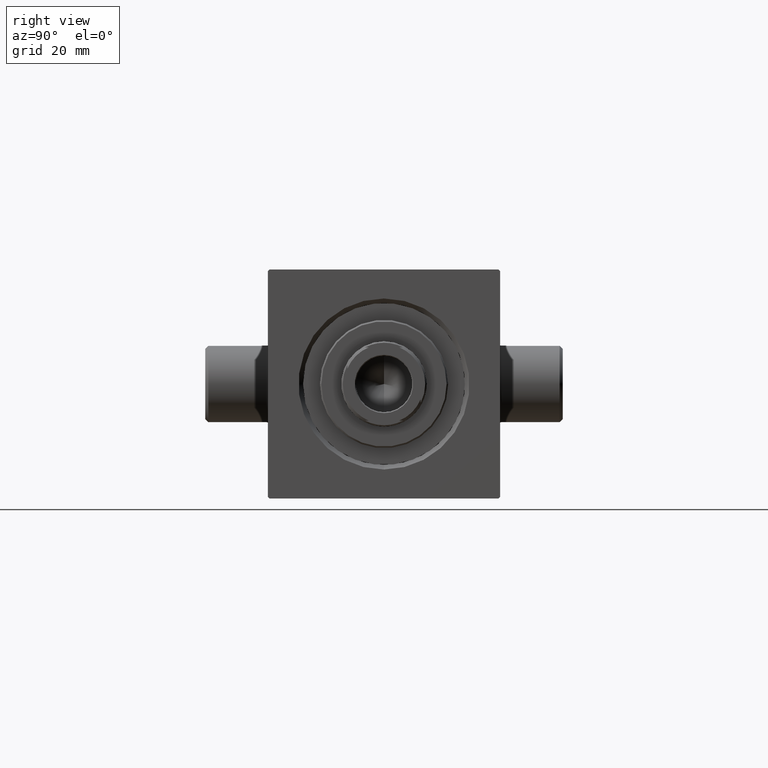
[diagram: clean part render]
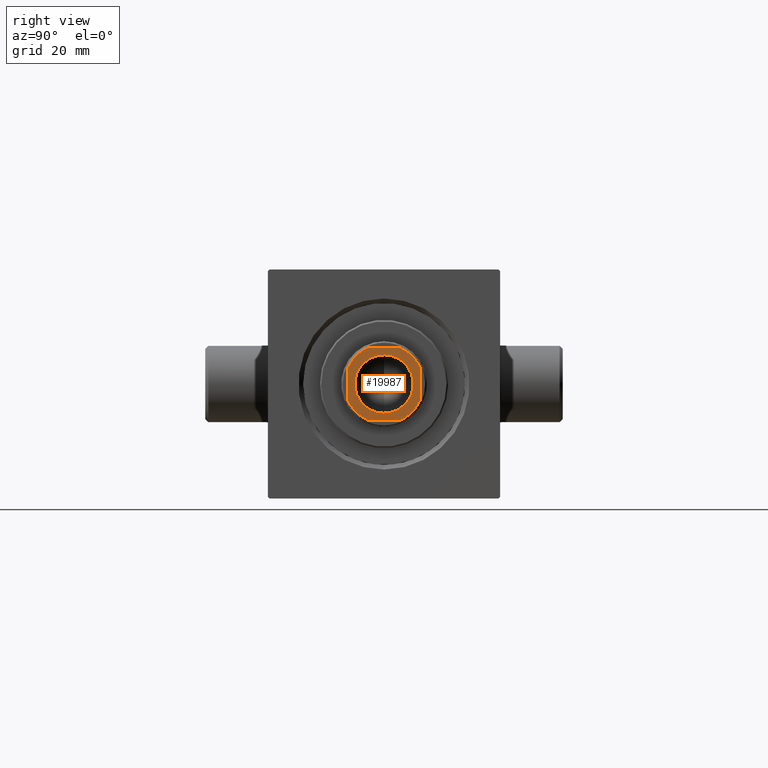
[diagram: same view with one face highlighted and labeled with its STEP entity id]
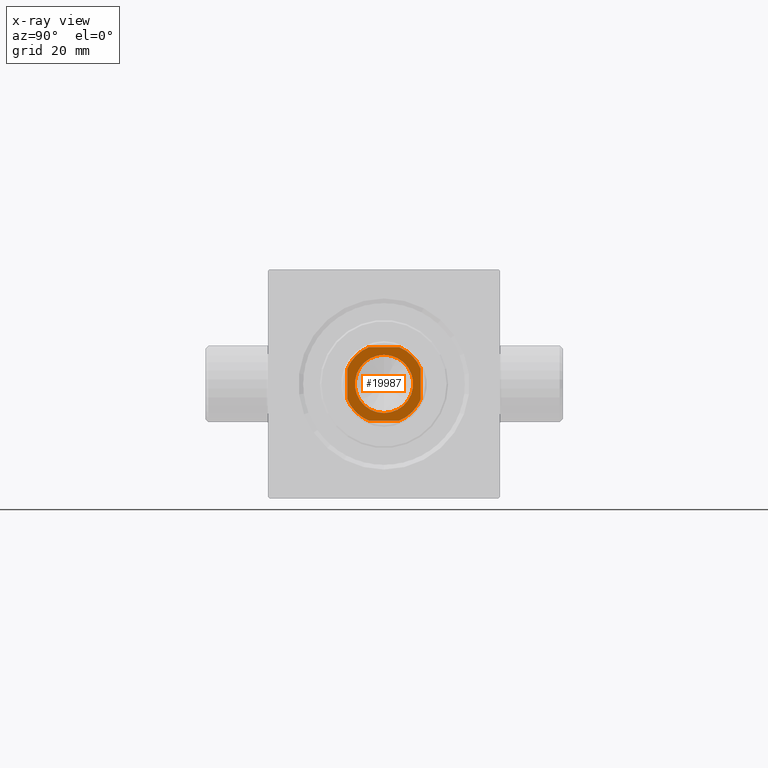
[diagram: x-ray of the same camera — body ghosted, the highlighted face saturated]
A machine part, right view. The second image highlights one B-rep face of the part: STEP entity #19987.
The next image is the same camera in x-ray: the body ghosted, the highlighted face saturated — about 0% of this face is hidden behind the body in this view.
In plain terms, the highlighted planar face has unit normal (1, 0, 0).
Its self-contained STEP definition (entity closure, byte-faithful):
#187 = EDGE_CURVE ( 'NONE', #32964, #28054, #38569, .T. ) ;
#599 = CARTESIAN_POINT ( 'NONE',  ( 11.99999999999999645, 11.99999999999999645, 142.0000000000000284 ) ) ;
#679 = DIRECTION ( 'NONE',  ( 1.000000000000000000, 0.000000000000000000, 0.000000000000000000 ) ) ;
#905 = DIRECTION ( 'NONE',  ( -0.000000000000000000, 0.000000000000000000, 1.000000000000000000 ) ) ;
#974 = VECTOR ( 'NONE', #35061, 1000.000000000000000 ) ;
#1606 = ORIENTED_EDGE ( 'NONE', *, *, #40793, .T. ) ;
#2113 = CARTESIAN_POINT ( 'NONE',  ( 0.000000000000000000, 0.000000000000000000, 142.0000000000000284 ) ) ;
#2617 = CARTESIAN_POINT ( 'NONE',  ( -12.00000000000000000, -4.999999999999980460, 142.0000000000000284 ) ) ;
#2945 = AXIS2_PLACEMENT_3D ( 'NONE', #2113, #42146, #41437 ) ;
#3119 = DIRECTION ( 'NONE',  ( -0.000000000000000000, 0.000000000000000000, 1.000000000000000000 ) ) ;
#3367 = ORIENTED_EDGE ( 'NONE', *, *, #19668, .T. ) ;
#3979 = CARTESIAN_POINT ( 'NONE',  ( 0.000000000000000000, 0.000000000000000000, 142.0000000000000284 ) ) ;
#4140 = EDGE_CURVE ( 'NONE', #10538, #11352, #11544, .T. ) ;
#4744 = EDGE_LOOP ( 'NONE', ( #12878, #32743, #25772, #32894, #43493, #1606, #42596, #3367 ) ) ;
#4932 = CARTESIAN_POINT ( 'NONE',  ( 0.000000000000000000, 0.000000000000000000, 142.0000000000000284 ) ) ;
#6520 = CARTESIAN_POINT ( 'NONE',  ( -11.99999999999999822, -12.00000000000000355, 142.0000000000000284 ) ) ;
#6645 = CIRCLE ( 'NONE', #29097, 12.99999999999999289 ) ;
#6796 = AXIS2_PLACEMENT_3D ( 'NONE', #3979, #18283, #21089 ) ;
#7738 = CARTESIAN_POINT ( 'NONE',  ( -9.550000000000002487, 1.169537693185722558E-15, 142.0000000000000284 ) ) ;
#8204 = EDGE_CURVE ( 'NONE', #11352, #15417, #24993, .T. ) ;
#10293 = CARTESIAN_POINT ( 'NONE',  ( 9.550000000000002487, 0.000000000000000000, 142.0000000000000284 ) ) ;
#10538 = VERTEX_POINT ( 'NONE', #16015 ) ;
#11318 = CARTESIAN_POINT ( 'NONE',  ( -12.00000000000000000, 11.99999999999999645, 142.0000000000000284 ) ) ;
#11352 = VERTEX_POINT ( 'NONE', #41849 ) ;
#11544 = LINE ( 'NONE', #11318, #23508 ) ;
#11740 = DIRECTION ( 'NONE',  ( 1.000000000000000000, 0.000000000000000000, 0.000000000000000000 ) ) ;
#12176 = CARTESIAN_POINT ( 'NONE',  ( 0.000000000000000000, 0.000000000000000000, 142.0000000000000284 ) ) ;
#12878 = ORIENTED_EDGE ( 'NONE', *, *, #21548, .T. ) ;
#13211 = CARTESIAN_POINT ( 'NONE',  ( 0.000000000000000000, 0.000000000000000000, 142.0000000000000284 ) ) ;
#13277 = ORIENTED_EDGE ( 'NONE', *, *, #32388, .T. ) ;
#13760 = VERTEX_POINT ( 'NONE', #18225 ) ;
#13921 = CARTESIAN_POINT ( 'NONE',  ( -4.999999999999971578, -12.00000000000000355, 142.0000000000000284 ) ) ;
#14913 = AXIS2_PLACEMENT_3D ( 'NONE', #12176, #40946, #26435 ) ;
#15417 = VERTEX_POINT ( 'NONE', #20513 ) ;
#16015 = CARTESIAN_POINT ( 'NONE',  ( 4.999999999999984013, 11.99999999999999645, 142.0000000000000284 ) ) ;
#16895 = PLANE ( 'NONE',  #2945 ) ;
#17449 = LINE ( 'NONE', #28878, #41219 ) ;
#17980 = VERTEX_POINT ( 'NONE', #2617 ) ;
#18225 = CARTESIAN_POINT ( 'NONE',  ( 12.00000000000000178, -4.999999999999976907, 142.0000000000000284 ) ) ;
#18283 = DIRECTION ( 'NONE',  ( 0.000000000000000000, -0.000000000000000000, -1.000000000000000000 ) ) ;
#18409 = DIRECTION ( 'NONE',  ( -2.891205793294678326E-16, 1.000000000000000000, -0.000000000000000000 ) ) ;
#19668 = EDGE_CURVE ( 'NONE', #28054, #13760, #6645, .T. ) ;
#19987 = ADVANCED_FACE ( 'NONE', ( #23881, #38619 ), #16895, .T. ) ;
#20142 = VECTOR ( 'NONE', #18409, 1000.000000000000000 ) ;
#20461 = DIRECTION ( 'NONE',  ( 0.000000000000000000, -0.000000000000000000, -1.000000000000000000 ) ) ;
#20513 = CARTESIAN_POINT ( 'NONE',  ( -12.00000000000000000, 4.999999999999936051, 142.0000000000000284 ) ) ;
#21089 = DIRECTION ( 'NONE',  ( 1.000000000000000000, 0.000000000000000000, 0.000000000000000000 ) ) ;
#21548 = EDGE_CURVE ( 'NONE', #13760, #44417, #37472, .T. ) ;
#22083 = DIRECTION ( 'NONE',  ( -1.000000000000000000, -0.000000000000000000, -0.000000000000000000 ) ) ;
#22731 = DIRECTION ( 'NONE',  ( -0.000000000000000000, 0.000000000000000000, 1.000000000000000000 ) ) ;
#23508 = VECTOR ( 'NONE', #22083, 1000.000000000000000 ) ;
#23881 = FACE_BOUND ( 'NONE', #25891, .T. ) ;
#23886 = CIRCLE ( 'NONE', #44062, 9.550000000000002487 ) ;
#24030 = EDGE_CURVE ( 'NONE', #44417, #10538, #35801, .T. ) ;
#24431 = CARTESIAN_POINT ( 'NONE',  ( 4.999999999999971578, -12.00000000000000355, 142.0000000000000284 ) ) ;
#24993 = CIRCLE ( 'NONE', #31745, 12.99999999999997513 ) ;
#25772 = ORIENTED_EDGE ( 'NONE', *, *, #4140, .T. ) ;
#25891 = EDGE_LOOP ( 'NONE', ( #42484, #13277 ) ) ;
#26435 = DIRECTION ( 'NONE',  ( 1.000000000000000000, 0.000000000000000000, 0.000000000000000000 ) ) ;
#26451 = EDGE_CURVE ( 'NONE', #34323, #26901, #23886, .T. ) ;
#26901 = VERTEX_POINT ( 'NONE', #7738 ) ;
#27459 = DIRECTION ( 'NONE',  ( 1.000000000000000000, 0.000000000000000000, 0.000000000000000000 ) ) ;
#28054 = VERTEX_POINT ( 'NONE', #24431 ) ;
#28157 = DIRECTION ( 'NONE',  ( 1.000000000000000000, 0.000000000000000000, 0.000000000000000000 ) ) ;
#28878 = CARTESIAN_POINT ( 'NONE',  ( -12.00000000000000000, 11.99999999999999645, 142.0000000000000284 ) ) ;
#29061 = CARTESIAN_POINT ( 'NONE',  ( 11.99999999999999822, 4.999999999999980460, 142.0000000000000284 ) ) ;
#29097 = AXIS2_PLACEMENT_3D ( 'NONE', #30963, #3119, #28157 ) ;
#30963 = CARTESIAN_POINT ( 'NONE',  ( 0.000000000000000000, 0.000000000000000000, 142.0000000000000284 ) ) ;
#31745 = AXIS2_PLACEMENT_3D ( 'NONE', #43724, #905, #679 ) ;
#32388 = EDGE_CURVE ( 'NONE', #26901, #34323, #45643, .T. ) ;
#32743 = ORIENTED_EDGE ( 'NONE', *, *, #24030, .T. ) ;
#32894 = ORIENTED_EDGE ( 'NONE', *, *, #8204, .T. ) ;
#32964 = VERTEX_POINT ( 'NONE', #13921 ) ;
#33890 = CIRCLE ( 'NONE', #41386, 12.99999999999999289 ) ;
#34323 = VERTEX_POINT ( 'NONE', #10293 ) ;
#34553 = EDGE_CURVE ( 'NONE', #15417, #17980, #17449, .T. ) ;
#35061 = DIRECTION ( 'NONE',  ( 1.000000000000000000, 0.000000000000000000, 0.000000000000000000 ) ) ;
#35801 = CIRCLE ( 'NONE', #14913, 12.99999999999999112 ) ;
#37472 = LINE ( 'NONE', #599, #20142 ) ;
#38569 = LINE ( 'NONE', #6520, #974 ) ;
#38619 = FACE_OUTER_BOUND ( 'NONE', #4744, .T. ) ;
#40793 = EDGE_CURVE ( 'NONE', #17980, #32964, #33890, .T. ) ;
#40946 = DIRECTION ( 'NONE',  ( -0.000000000000000000, 0.000000000000000000, 1.000000000000000000 ) ) ;
#41219 = VECTOR ( 'NONE', #46204, 1000.000000000000000 ) ;
#41386 = AXIS2_PLACEMENT_3D ( 'NONE', #4932, #22731, #11740 ) ;
#41437 = DIRECTION ( 'NONE',  ( 1.000000000000000000, 0.000000000000000000, 0.000000000000000000 ) ) ;
#41849 = CARTESIAN_POINT ( 'NONE',  ( -4.999999999999944933, 11.99999999999999645, 142.0000000000000284 ) ) ;
#42146 = DIRECTION ( 'NONE',  ( -0.000000000000000000, 0.000000000000000000, 1.000000000000000000 ) ) ;
#42484 = ORIENTED_EDGE ( 'NONE', *, *, #26451, .T. ) ;
#42596 = ORIENTED_EDGE ( 'NONE', *, *, #187, .T. ) ;
#43493 = ORIENTED_EDGE ( 'NONE', *, *, #34553, .T. ) ;
#43724 = CARTESIAN_POINT ( 'NONE',  ( 0.000000000000000000, 0.000000000000000000, 142.0000000000000284 ) ) ;
#44062 = AXIS2_PLACEMENT_3D ( 'NONE', #13211, #20461, #27459 ) ;
#44417 = VERTEX_POINT ( 'NONE', #29061 ) ;
#45643 = CIRCLE ( 'NONE', #6796, 9.550000000000002487 ) ;
#46204 = DIRECTION ( 'NONE',  ( 7.228014483236695816E-17, -1.000000000000000000, 0.000000000000000000 ) ) ;